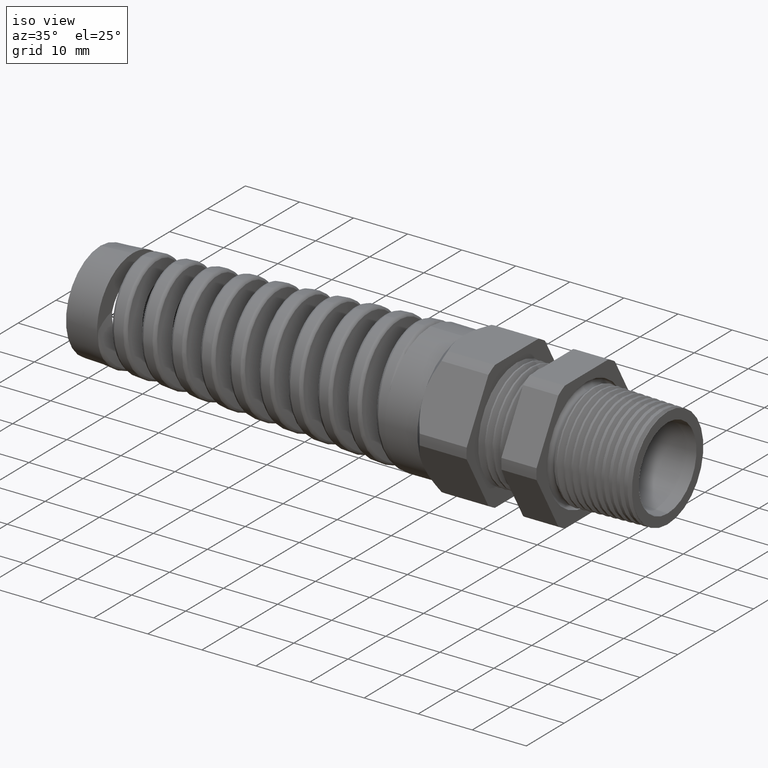
[diagram: clean part render]
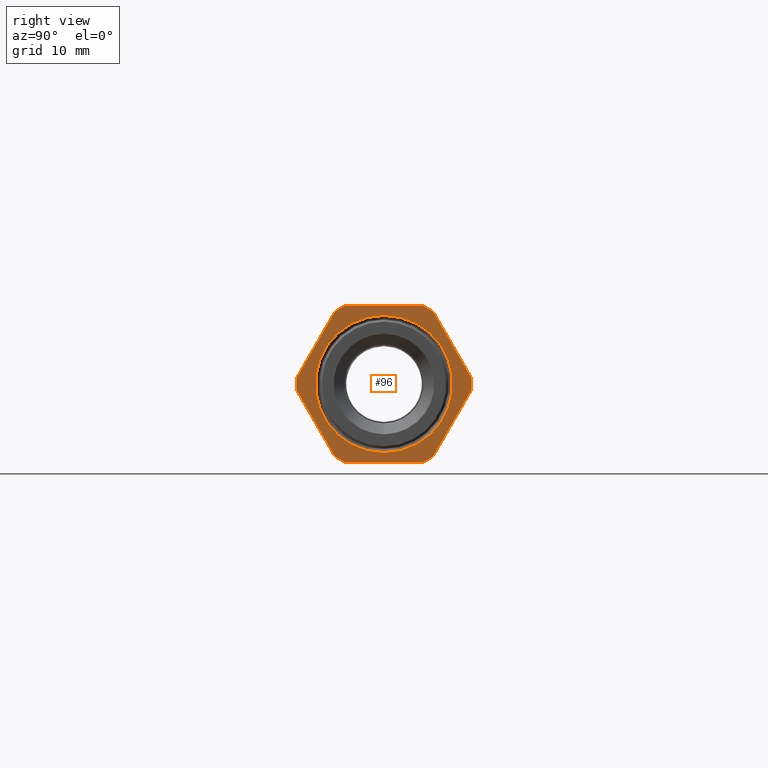
[diagram: tour spotlight — one face highlighted and labeled with its STEP entity id]
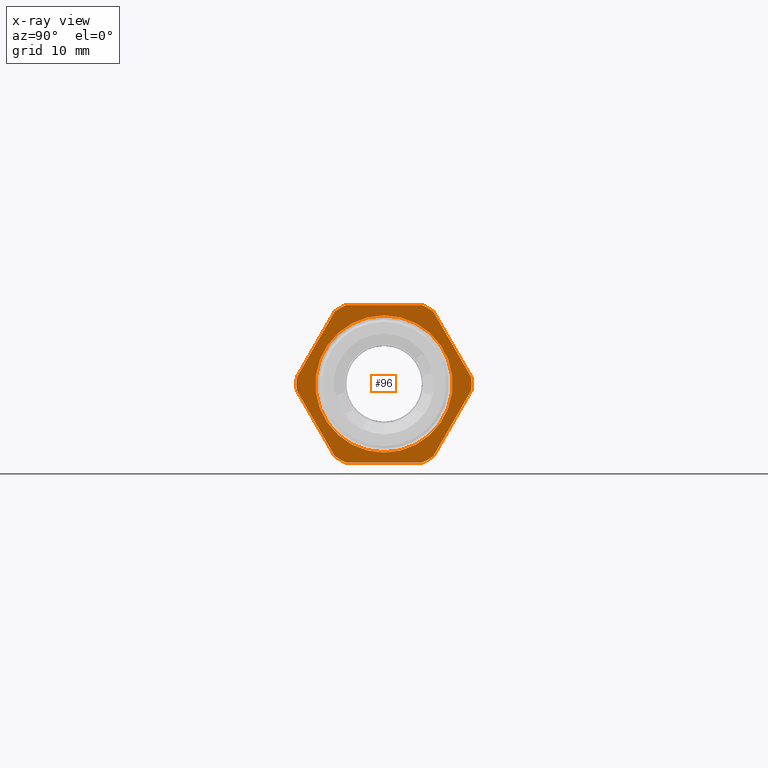
[diagram: x-ray of the same camera — body ghosted, this tour face saturated]
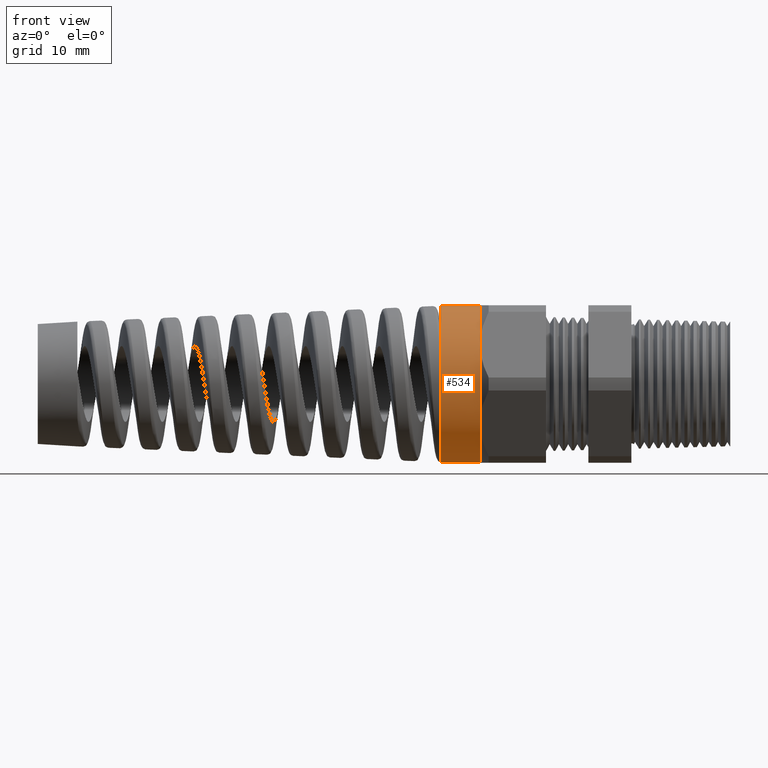
[diagram: tour spotlight — one face highlighted and labeled with its STEP entity id]
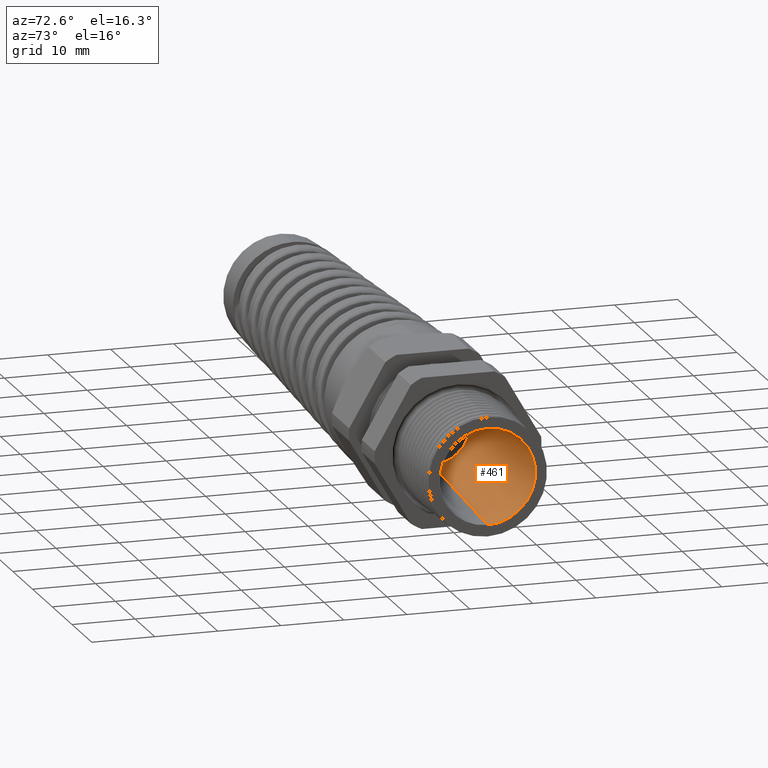
[diagram: tour spotlight — one face highlighted and labeled with its STEP entity id]
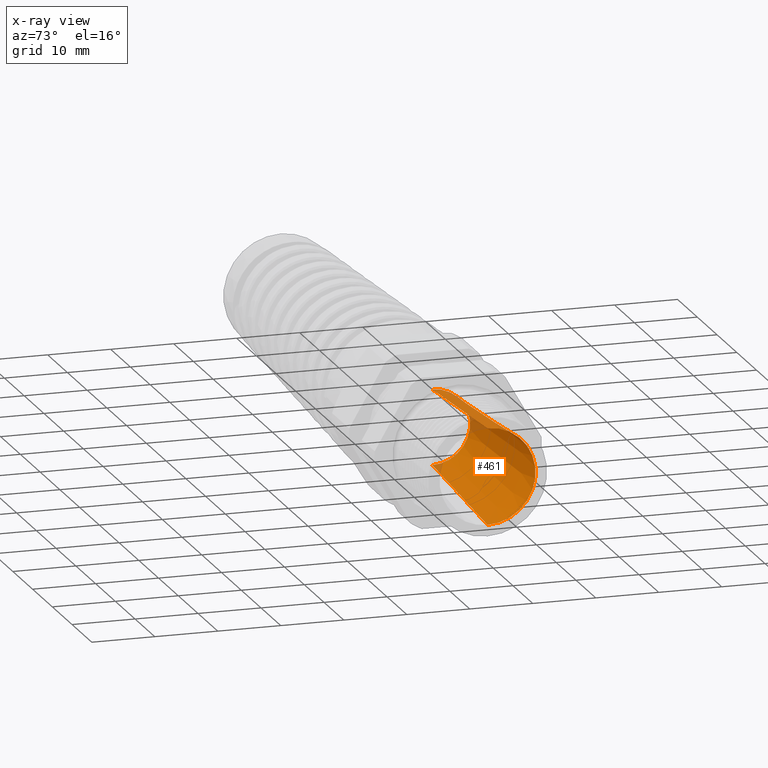
[diagram: x-ray of the same camera — body ghosted, this tour face saturated]
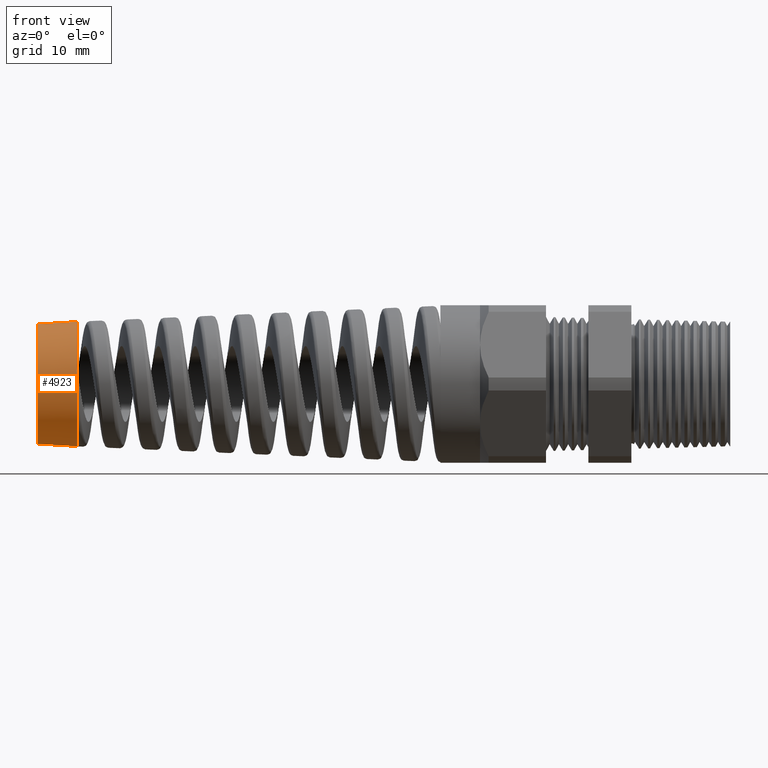
[diagram: tour spotlight — one face highlighted and labeled with its STEP entity id]
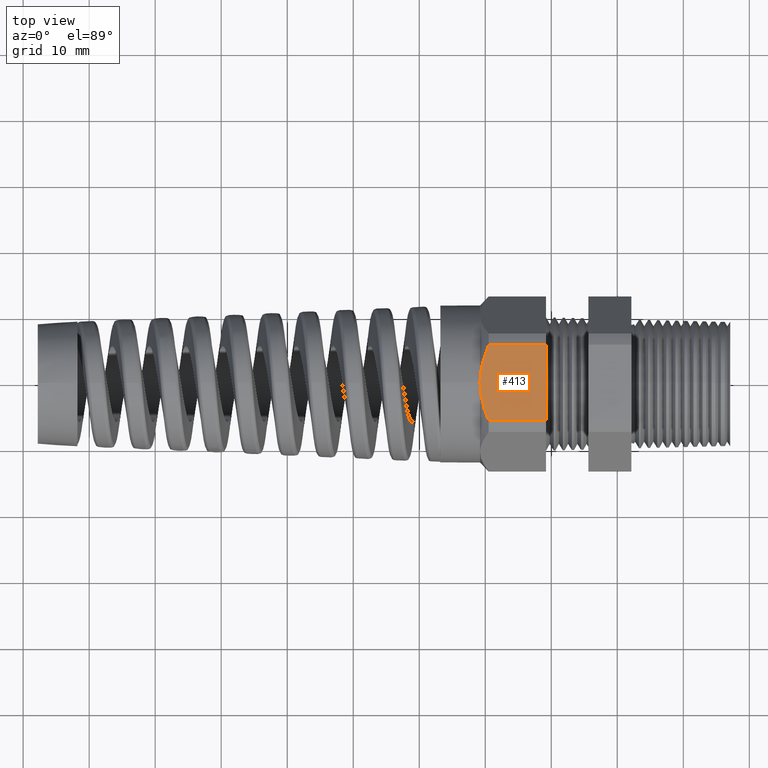
[diagram: tour spotlight — one face highlighted and labeled with its STEP entity id]
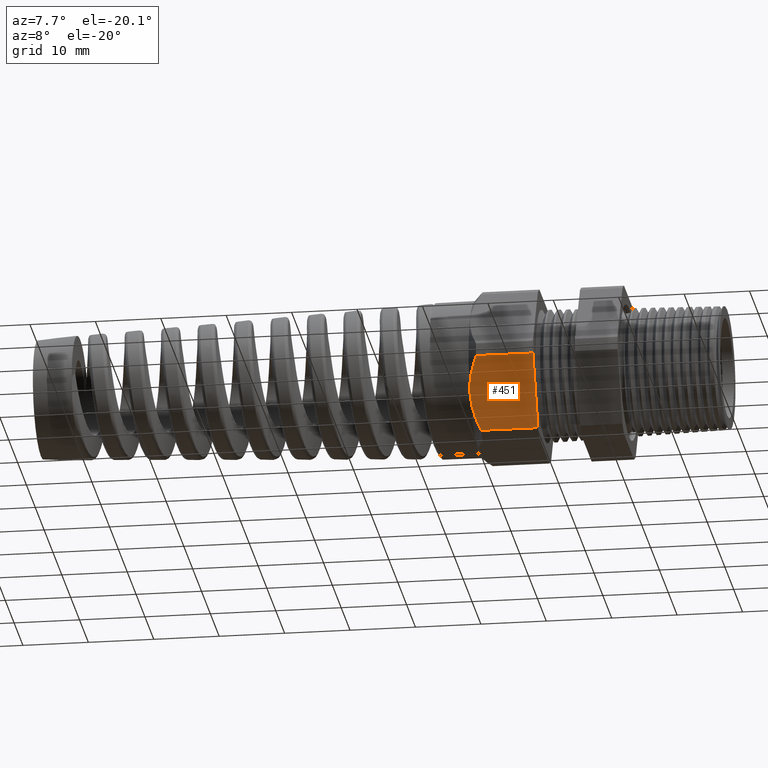
[diagram: tour spotlight — one face highlighted and labeled with its STEP entity id]
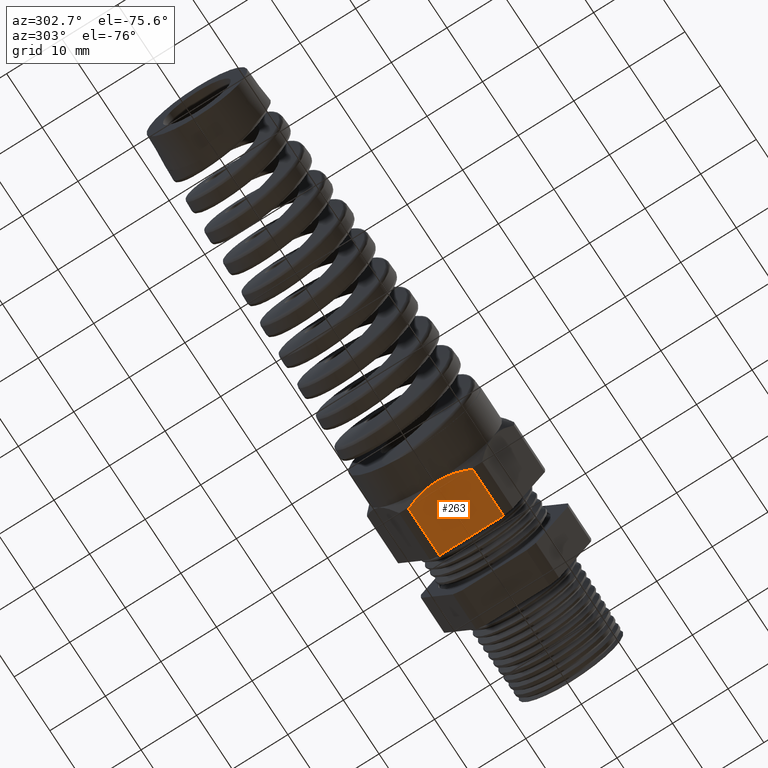
[diagram: tour spotlight — one face highlighted and labeled with its STEP entity id]
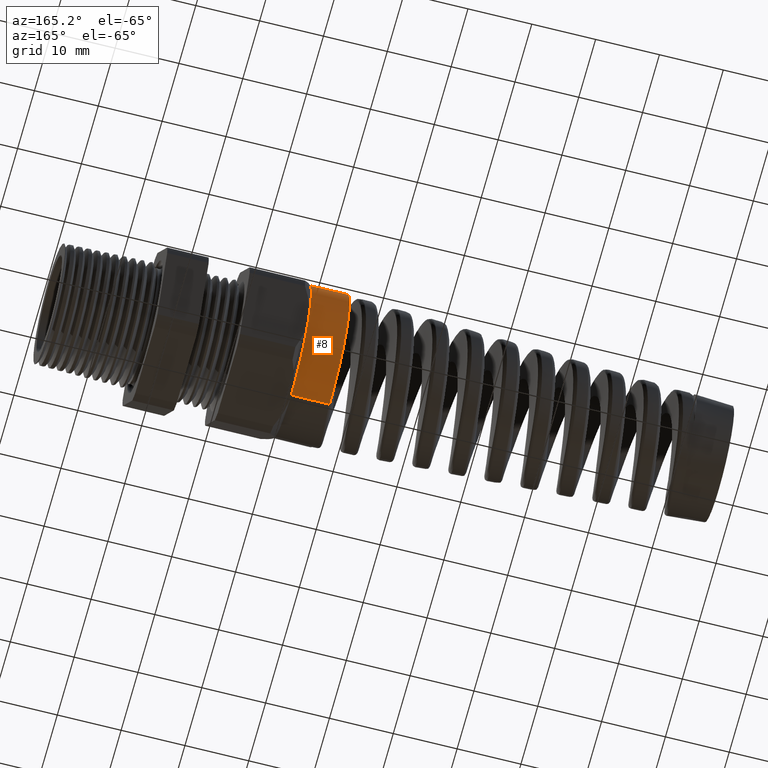
[diagram: tour spotlight — one face highlighted and labeled with its STEP entity id]
A machine part: a face-by-face anatomy tour. The part has 209 B-rep faces; the first image is the clean iso view, then the 8 largest visible faces are spotlighted one at a time (largest first), each with its STEP entity span.

Face 1 — right view, entity #96. An x-ray twin of the same camera follows (body ghosted, this face saturated) — the face is partly hidden behind the body. In plain terms, the highlighted planar face has unit normal (1, 0, 0).
Definition (entity closure, byte-faithful):
#36 = VERTEX_POINT ( 'NONE', #1205 ) ;
#37 = ORIENTED_EDGE ( 'NONE', *, *, #38, .T. ) ;
#38 = EDGE_CURVE ( 'NONE', #36, #39, #1204, .T. ) ;
#39 = VERTEX_POINT ( 'NONE', #1200 ) ;
#40 = ORIENTED_EDGE ( 'NONE', *, *, #42, .T. ) ;
#41 = VERTEX_POINT ( 'NONE', #1199 ) ;
#42 = EDGE_CURVE ( 'NONE', #39, #41, #1198, .T. ) ;
#43 = ORIENTED_EDGE ( 'NONE', *, *, #44, .T. ) ;
#44 = EDGE_CURVE ( 'NONE', #41, #45, #1193, .T. ) ;
#45 = VERTEX_POINT ( 'NONE', #1189 ) ;
#46 = ORIENTED_EDGE ( 'NONE', *, *, #47, .T. ) ;
#47 = EDGE_CURVE ( 'NONE', #45, #100, #1269, .T. ) ;
#48 = EDGE_LOOP ( 'NONE', ( #49, #50 ) ) ;
#49 = ORIENTED_EDGE ( 'NONE', *, *, #4506, .T. ) ;
#50 = ORIENTED_EDGE ( 'NONE', *, *, #51, .T. ) ;
#51 = EDGE_CURVE ( 'NONE', #4542, #4549, #1265, .T. ) ;
#53 = ORIENTED_EDGE ( 'NONE', *, *, #54, .T. ) ;
#54 = EDGE_CURVE ( 'NONE', #101, #55, #1260, .T. ) ;
#55 = VERTEX_POINT ( 'NONE', #1353 ) ;
#76 = ORIENTED_EDGE ( 'NONE', *, *, #77, .T. ) ;
#77 = EDGE_CURVE ( 'NONE', #55, #78, #1321, .T. ) ;
#78 = VERTEX_POINT ( 'NONE', #1317 ) ;
#79 = ORIENTED_EDGE ( 'NONE', *, *, #80, .T. ) ;
#80 = EDGE_CURVE ( 'NONE', #78, #81, #1316, .T. ) ;
#81 = VERTEX_POINT ( 'NONE', #1311 ) ;
#82 = ORIENTED_EDGE ( 'NONE', *, *, #83, .T. ) ;
#83 = EDGE_CURVE ( 'NONE', #81, #84, #1310, .T. ) ;
#84 = VERTEX_POINT ( 'NONE', #1278 ) ;
#85 = ORIENTED_EDGE ( 'NONE', *, *, #86, .T. ) ;
#86 = EDGE_CURVE ( 'NONE', #84, #87, #1277, .T. ) ;
#87 = VERTEX_POINT ( 'NONE', #1272 ) ;
#88 = ORIENTED_EDGE ( 'NONE', *, *, #89, .T. ) ;
#89 = EDGE_CURVE ( 'NONE', #87, #90, #1271, .T. ) ;
#90 = VERTEX_POINT ( 'NONE', #1307 ) ;
#96 = ADVANCED_FACE ( 'NONE', ( #1296, #1295 ), #1294, .T. ) ;
#97 = EDGE_LOOP ( 'NONE', ( #98, #53, #76, #79, #82, #85, #88, #116, #37, #40, #43, #46 ) ) ;
#98 = ORIENTED_EDGE ( 'NONE', *, *, #99, .T. ) ;
#99 = EDGE_CURVE ( 'NONE', #100, #101, #1411, .T. ) ;
#100 = VERTEX_POINT ( 'NONE', #1407 ) ;
#101 = VERTEX_POINT ( 'NONE', #1406 ) ;
#116 = ORIENTED_EDGE ( 'NONE', *, *, #117, .T. ) ;
#117 = EDGE_CURVE ( 'NONE', #90, #36, #1363, .T. ) ;
#1188 = CARTESIAN_POINT ( 'NONE',  ( -0.3100000000000000000, 0.0000000000000000000, 0.0000000000000000000 ) ) ;
#1189 = CARTESIAN_POINT ( 'NONE',  ( -0.3100000000000000000, 0.2264307620443832800, -0.4699999999999999700 ) ) ;
#1190 = DIRECTION ( 'NONE',  ( 0.0000000000000000000, 1.000000000000000000, 0.0000000000000000000 ) ) ;
#1191 = VECTOR ( 'NONE', #1190, 39.37007874015748100 ) ;
#1192 = CARTESIAN_POINT ( 'NONE',  ( -0.3100000000000000000, 0.9399999999999999500, -0.4699999999999999700 ) ) ;
#1193 = LINE ( 'NONE', #1192, #1191 ) ;
#1194 = DIRECTION ( 'NONE',  ( 0.0000000000000000000, 0.0000000000000000000, -1.000000000000000000 ) ) ;
#1195 = DIRECTION ( 'NONE',  ( 1.000000000000000000, 0.0000000000000000000, 0.0000000000000000000 ) ) ;
#1196 = CARTESIAN_POINT ( 'NONE',  ( -0.3100000000000000000, 0.0000000000000000000, 0.0000000000000000000 ) ) ;
#1197 = AXIS2_PLACEMENT_3D ( 'NONE', #1196, #1195, #1194 ) ;
#1198 = CIRCLE ( 'NONE', #1197, 0.5217000000000000500 ) ;
#1199 = CARTESIAN_POINT ( 'NONE',  ( -0.3100000000000000000, -0.2264307620443832300, -0.4699999999999999700 ) ) ;
#1200 = CARTESIAN_POINT ( 'NONE',  ( -0.3100000000000000000, -0.2938165587564942600, -0.4310947921287053300 ) ) ;
#1201 = DIRECTION ( 'NONE',  ( 0.0000000000000000000, 0.5000000000000001100, -0.8660254037844386000 ) ) ;
#1202 = VECTOR ( 'NONE', #1201, 39.37007874015748100 ) ;
#1203 = CARTESIAN_POINT ( 'NONE',  ( -0.3100000000000000000, -0.1720319397786861700, -0.6420319397786863300 ) ) ;
#1204 = LINE ( 'NONE', #1203, #1202 ) ;
#1205 = CARTESIAN_POINT ( 'NONE',  ( -0.3100000000000000000, -0.5202473208008777700, -0.03890520787129494300 ) ) ;
#1257 = DIRECTION ( 'NONE',  ( 1.000000000000000000, 0.0000000000000000000, 0.0000000000000000000 ) ) ;
#1258 = CARTESIAN_POINT ( 'NONE',  ( -0.3100000000000000000, 0.0000000000000000000, 0.0000000000000000000 ) ) ;
#1259 = AXIS2_PLACEMENT_3D ( 'NONE', #1258, #1257, #1354 ) ;
#1260 = CIRCLE ( 'NONE', #1259, 0.5217000000000000500 ) ;
#1261 = DIRECTION ( 'NONE',  ( 0.0000000000000000000, 0.0000000000000000000, -1.000000000000000000 ) ) ;
#1262 = DIRECTION ( 'NONE',  ( -1.000000000000000000, 0.0000000000000000000, 0.0000000000000000000 ) ) ;
#1263 = CARTESIAN_POINT ( 'NONE',  ( -0.3100000000000000000, 0.0000000000000000000, 0.0000000000000000000 ) ) ;
#1264 = AXIS2_PLACEMENT_3D ( 'NONE', #1263, #1262, #1261 ) ;
#1265 = CIRCLE ( 'NONE', #1264, 0.4091579204208630700 ) ;
#1266 = DIRECTION ( 'NONE',  ( 0.0000000000000000000, 0.0000000000000000000, -1.000000000000000000 ) ) ;
#1267 = DIRECTION ( 'NONE',  ( 1.000000000000000000, 0.0000000000000000000, 0.0000000000000000000 ) ) ;
#1268 = AXIS2_PLACEMENT_3D ( 'NONE', #1188, #1267, #1266 ) ;
#1269 = CIRCLE ( 'NONE', #1268, 0.5217000000000000500 ) ;
#1270 = CARTESIAN_POINT ( 'NONE',  ( -0.3100000000000000000, -0.1720319397786868300, 0.6420319397786857800 ) ) ;
#1271 = LINE ( 'NONE', #1270, #1309 ) ;
#1272 = CARTESIAN_POINT ( 'NONE',  ( -0.3100000000000000000, -0.2938165587564948700, 0.4310947921287048800 ) ) ;
#1273 = DIRECTION ( 'NONE',  ( 0.0000000000000000000, 0.0000000000000000000, -1.000000000000000000 ) ) ;
#1274 = DIRECTION ( 'NONE',  ( 1.000000000000000000, 0.0000000000000000000, 0.0000000000000000000 ) ) ;
#1275 = CARTESIAN_POINT ( 'NONE',  ( -0.3100000000000000000, 0.0000000000000000000, 0.0000000000000000000 ) ) ;
#1276 = AXIS2_PLACEMENT_3D ( 'NONE', #1275, #1274, #1273 ) ;
#1277 = CIRCLE ( 'NONE', #1276, 0.5217000000000000500 ) ;
#1278 = CARTESIAN_POINT ( 'NONE',  ( -0.3100000000000000000, -0.2264307620443835600, 0.4699999999999997500 ) ) ;
#1279 = DIRECTION ( 'NONE',  ( 0.0000000000000000000, -1.000000000000000000, 0.0000000000000000000 ) ) ;
#1280 = VECTOR ( 'NONE', #1279, 39.37007874015748100 ) ;
#1281 = CARTESIAN_POINT ( 'NONE',  ( -0.3100000000000000000, 0.9399999999999999500, 0.4699999999999999200 ) ) ;
#1293 = CARTESIAN_POINT ( 'NONE',  ( -0.3100000000000000000, 0.9399999999999999500, 0.0000000000000000000 ) ) ;
#1294 = PLANE ( 'NONE',  #1414 ) ;
#1295 = FACE_BOUND ( 'NONE', #48, .T. ) ;
#1296 = FACE_OUTER_BOUND ( 'NONE', #97, .T. ) ;
#1307 = CARTESIAN_POINT ( 'NONE',  ( -0.3100000000000000000, -0.5202473208008777700, 0.03890520787129464500 ) ) ;
#1308 = DIRECTION ( 'NONE',  ( 0.0000000000000000000, -0.4999999999999995600, -0.8660254037844389300 ) ) ;
#1309 = VECTOR ( 'NONE', #1308, 39.37007874015748100 ) ;
#1310 = LINE ( 'NONE', #1281, #1280 ) ;
#1311 = CARTESIAN_POINT ( 'NONE',  ( -0.3100000000000000000, 0.2264307620443832800, 0.4699999999999999200 ) ) ;
#1312 = DIRECTION ( 'NONE',  ( 0.0000000000000000000, 0.0000000000000000000, -1.000000000000000000 ) ) ;
#1313 = DIRECTION ( 'NONE',  ( 1.000000000000000000, 0.0000000000000000000, 0.0000000000000000000 ) ) ;
#1314 = CARTESIAN_POINT ( 'NONE',  ( -0.3100000000000000000, 0.0000000000000000000, 0.0000000000000000000 ) ) ;
#1315 = AXIS2_PLACEMENT_3D ( 'NONE', #1314, #1313, #1312 ) ;
#1316 = CIRCLE ( 'NONE', #1315, 0.5217000000000000500 ) ;
#1317 = CARTESIAN_POINT ( 'NONE',  ( -0.3100000000000000000, 0.2938165587564949300, 0.4310947921287048300 ) ) ;
#1318 = DIRECTION ( 'NONE',  ( 0.0000000000000000000, -0.4999999999999998300, 0.8660254037844386000 ) ) ;
#1319 = VECTOR ( 'NONE', #1318, 39.37007874015748900 ) ;
#1320 = CARTESIAN_POINT ( 'NONE',  ( -0.3100000000000000000, 0.6420319397786862200, -0.1720319397786860800 ) ) ;
#1321 = LINE ( 'NONE', #1320, #1319 ) ;
#1353 = CARTESIAN_POINT ( 'NONE',  ( -0.3100000000000000000, 0.5202473208008776600, 0.03890520787129531800 ) ) ;
#1354 = DIRECTION ( 'NONE',  ( 0.0000000000000000000, 0.0000000000000000000, -1.000000000000000000 ) ) ;
#1359 = DIRECTION ( 'NONE',  ( 0.0000000000000000000, 0.0000000000000000000, -1.000000000000000000 ) ) ;
#1360 = DIRECTION ( 'NONE',  ( 1.000000000000000000, 0.0000000000000000000, 0.0000000000000000000 ) ) ;
#1361 = CARTESIAN_POINT ( 'NONE',  ( -0.3100000000000000000, 0.0000000000000000000, 0.0000000000000000000 ) ) ;
#1362 = AXIS2_PLACEMENT_3D ( 'NONE', #1361, #1360, #1359 ) ;
#1363 = CIRCLE ( 'NONE', #1362, 0.5217000000000000500 ) ;
#1406 = CARTESIAN_POINT ( 'NONE',  ( -0.3100000000000000000, 0.5202473208008777700, -0.03890520787129508200 ) ) ;
#1407 = CARTESIAN_POINT ( 'NONE',  ( -0.3100000000000000000, 0.2938165587564948700, -0.4310947921287048800 ) ) ;
#1408 = DIRECTION ( 'NONE',  ( 0.0000000000000000000, 0.4999999999999998300, 0.8660254037844386000 ) ) ;
#1409 = VECTOR ( 'NONE', #1408, 39.37007874015748900 ) ;
#1410 = CARTESIAN_POINT ( 'NONE',  ( -0.3100000000000000000, 0.6420319397786862200, 0.1720319397786860800 ) ) ;
#1411 = LINE ( 'NONE', #1410, #1409 ) ;
#1412 = DIRECTION ( 'NONE',  ( 0.0000000000000000000, 0.0000000000000000000, -1.000000000000000000 ) ) ;
#1413 = DIRECTION ( 'NONE',  ( 1.000000000000000000, 0.0000000000000000000, 0.0000000000000000000 ) ) ;
#1414 = AXIS2_PLACEMENT_3D ( 'NONE', #1293, #1413, #1412 ) ;
#4506 = EDGE_CURVE ( 'NONE', #4549, #4542, #12811, .T. ) ;
#4542 = VERTEX_POINT ( 'NONE', #13324 ) ;
#4549 = VERTEX_POINT ( 'NONE', #13449 ) ;
#12696 = CARTESIAN_POINT ( 'NONE',  ( -0.3100000000000000000, 0.0000000000000000000, 0.0000000000000000000 ) ) ;
#12808 = DIRECTION ( 'NONE',  ( 0.0000000000000000000, 0.0000000000000000000, -1.000000000000000000 ) ) ;
#12809 = DIRECTION ( 'NONE',  ( -1.000000000000000000, 0.0000000000000000000, 0.0000000000000000000 ) ) ;
#12810 = AXIS2_PLACEMENT_3D ( 'NONE', #12696, #12809, #12808 ) ;
#12811 = CIRCLE ( 'NONE', #12810, 0.4091579204208630700 ) ;
#13324 = CARTESIAN_POINT ( 'NONE',  ( -0.3100000000000000000, 5.010739375891974600E-017, 0.4091579204208630200 ) ) ;
#13449 = CARTESIAN_POINT ( 'NONE',  ( -0.3100000000000000000, 0.0000000000000000000, -0.4091579204208630200 ) ) ;

Face 2 — front view, entity #534. In plain terms, the highlighted cylindrical surface (partial cylindrical patch) has radius 11.938 mm, axis along (1, 0, 0).
Definition (entity closure, byte-faithful):
#21 = VERTEX_POINT ( 'NONE', #1327 ) ;
#22 = VERTEX_POINT ( 'NONE', #1292 ) ;
#24 = EDGE_CURVE ( 'NONE', #21, #25, #1291, .T. ) ;
#25 = VERTEX_POINT ( 'NONE', #1287 ) ;
#115 = EDGE_CURVE ( 'NONE', #22, #183, #1367, .T. ) ;
#183 = VERTEX_POINT ( 'NONE', #1460 ) ;
#249 = VERTEX_POINT ( 'NONE', #1628 ) ;
#381 = EDGE_CURVE ( 'NONE', #25, #249, #1938, .T. ) ;
#533 = VERTEX_POINT ( 'NONE', #2340 ) ;
#534 = ADVANCED_FACE ( 'NONE', ( #2342 ), #2324, .T. ) ;
#535 = EDGE_LOOP ( 'NONE', ( #536, #537, #539, #540, #542, #544 ) ) ;
#536 = ORIENTED_EDGE ( 'NONE', *, *, #24, .F. ) ;
#537 = ORIENTED_EDGE ( 'NONE', *, *, #538, .F. ) ;
#538 = EDGE_CURVE ( 'NONE', #22, #21, #2316, .T. ) ;
#539 = ORIENTED_EDGE ( 'NONE', *, *, #115, .T. ) ;
#540 = ORIENTED_EDGE ( 'NONE', *, *, #541, .F. ) ;
#541 = EDGE_CURVE ( 'NONE', #533, #183, #2312, .T. ) ;
#542 = ORIENTED_EDGE ( 'NONE', *, *, #543, .F. ) ;
#543 = EDGE_CURVE ( 'NONE', #249, #533, #2307, .T. ) ;
#544 = ORIENTED_EDGE ( 'NONE', *, *, #381, .F. ) ;
#1287 = CARTESIAN_POINT ( 'NONE',  ( -1.212519685039370000, 0.0000000000000000000, 0.4699999999999999200 ) ) ;
#1288 = DIRECTION ( 'NONE',  ( 1.000000000000000000, 0.0000000000000000000, 0.0000000000000000000 ) ) ;
#1289 = VECTOR ( 'NONE', #1288, 39.37007874015748100 ) ;
#1290 = CARTESIAN_POINT ( 'NONE',  ( 0.0000000000000000000, 5.755839955992559700E-017, 0.4699999999999999700 ) ) ;
#1291 = LINE ( 'NONE', #1290, #1289 ) ;
#1292 = CARTESIAN_POINT ( 'NONE',  ( -1.448820353894546600, 0.0000000000000000000, -0.4699999999999997500 ) ) ;
#1327 = CARTESIAN_POINT ( 'NONE',  ( -1.448820353894546600, 5.755839955992558400E-017, 0.4699999999999997500 ) ) ;
#1364 = DIRECTION ( 'NONE',  ( 1.000000000000000000, 0.0000000000000000000, 0.0000000000000000000 ) ) ;
#1365 = VECTOR ( 'NONE', #1364, 39.37007874015748100 ) ;
#1366 = CARTESIAN_POINT ( 'NONE',  ( 0.0000000000000000000, 0.0000000000000000000, -0.4699999999999999700 ) ) ;
#1367 = LINE ( 'NONE', #1366, #1365 ) ;
#1460 = CARTESIAN_POINT ( 'NONE',  ( -1.212519685039370000, 0.0000000000000000000, -0.4699999999999999700 ) ) ;
#1628 = CARTESIAN_POINT ( 'NONE',  ( -1.212519685039370000, -0.4070319397786862400, 0.2349999999999997900 ) ) ;
#1935 = DIRECTION ( 'NONE',  ( 0.0000000000000000000, 0.0000000000000000000, -1.000000000000000000 ) ) ;
#1936 = DIRECTION ( 'NONE',  ( 1.000000000000000000, 0.0000000000000000000, 0.0000000000000000000 ) ) ;
#1937 = AXIS2_PLACEMENT_3D ( 'NONE', #2056, #1936, #1935 ) ;
#1938 = CIRCLE ( 'NONE', #1937, 0.4699999999999999700 ) ;
#2056 = CARTESIAN_POINT ( 'NONE',  ( -1.212519685039370000, 0.0000000000000000000, 0.0000000000000000000 ) ) ;
#2303 = DIRECTION ( 'NONE',  ( 0.0000000000000000000, 0.0000000000000000000, -1.000000000000000000 ) ) ;
#2304 = DIRECTION ( 'NONE',  ( 1.000000000000000000, 0.0000000000000000000, 0.0000000000000000000 ) ) ;
#2305 = CARTESIAN_POINT ( 'NONE',  ( -1.212519685039370000, 0.0000000000000000000, 0.0000000000000000000 ) ) ;
#2306 = AXIS2_PLACEMENT_3D ( 'NONE', #2305, #2304, #2303 ) ;
#2307 = CIRCLE ( 'NONE', #2306, 0.4699999999999999700 ) ;
#2308 = DIRECTION ( 'NONE',  ( 0.0000000000000000000, 0.0000000000000000000, -1.000000000000000000 ) ) ;
#2309 = DIRECTION ( 'NONE',  ( 1.000000000000000000, 0.0000000000000000000, 0.0000000000000000000 ) ) ;
#2310 = CARTESIAN_POINT ( 'NONE',  ( -1.212519685039370000, 0.0000000000000000000, 0.0000000000000000000 ) ) ;
#2311 = AXIS2_PLACEMENT_3D ( 'NONE', #2310, #2309, #2308 ) ;
#2312 = CIRCLE ( 'NONE', #2311, 0.4699999999999999700 ) ;
#2313 = DIRECTION ( 'NONE',  ( 0.0000000000000000000, 0.0000000000000000000, 1.000000000000000000 ) ) ;
#2314 = DIRECTION ( 'NONE',  ( -1.000000000000000000, 0.0000000000000000000, 0.0000000000000000000 ) ) ;
#2315 = AXIS2_PLACEMENT_3D ( 'NONE', #2339, #2314, #2313 ) ;
#2316 = CIRCLE ( 'NONE', #2315, 0.4699999999999997500 ) ;
#2324 = CYLINDRICAL_SURFACE ( 'NONE', #2338, 0.4699999999999999700 ) ;
#2335 = DIRECTION ( 'NONE',  ( 0.0000000000000000000, 0.0000000000000000000, -1.000000000000000000 ) ) ;
#2336 = DIRECTION ( 'NONE',  ( 1.000000000000000000, 0.0000000000000000000, 0.0000000000000000000 ) ) ;
#2337 = CARTESIAN_POINT ( 'NONE',  ( 0.0000000000000000000, 0.0000000000000000000, 0.0000000000000000000 ) ) ;
#2338 = AXIS2_PLACEMENT_3D ( 'NONE', #2337, #2336, #2335 ) ;
#2339 = CARTESIAN_POINT ( 'NONE',  ( -1.448820353894546600, 0.0000000000000000000, 0.0000000000000000000 ) ) ;
#2340 = CARTESIAN_POINT ( 'NONE',  ( -1.212519685039370000, -0.4070319397786861200, -0.2350000000000000400 ) ) ;
#2342 = FACE_OUTER_BOUND ( 'NONE', #535, .T. ) ;

Face 3 — auxiliary view, entity #461. An x-ray twin of the same camera follows (body ghosted, this face saturated) — the face is partly hidden behind the body. In plain terms, the highlighted conical surface has half-angle 3.385 deg.
Definition (entity closure, byte-faithful):
#152 = VERTEX_POINT ( 'NONE', #1573 ) ;
#153 = VERTEX_POINT ( 'NONE', #1572 ) ;
#155 = EDGE_CURVE ( 'NONE', #152, #156, #1571, .T. ) ;
#156 = VERTEX_POINT ( 'NONE', #1605 ) ;
#198 = VERTEX_POINT ( 'NONE', #1552 ) ;
#233 = EDGE_CURVE ( 'NONE', #153, #198, #1415, .T. ) ;
#428 = ORIENTED_EDGE ( 'NONE', *, *, #233, .T. ) ;
#429 = ORIENTED_EDGE ( 'NONE', *, *, #430, .T. ) ;
#430 = EDGE_CURVE ( 'NONE', #198, #156, #1900, .T. ) ;
#460 = EDGE_CURVE ( 'NONE', #153, #152, #2049, .T. ) ;
#461 = ADVANCED_FACE ( 'NONE', ( #2045 ), #2044, .F. ) ;
#462 = EDGE_LOOP ( 'NONE', ( #463, #464, #428, #429 ) ) ;
#463 = ORIENTED_EDGE ( 'NONE', *, *, #155, .F. ) ;
#464 = ORIENTED_EDGE ( 'NONE', *, *, #460, .F. ) ;
#1415 = LINE ( 'NONE', #1421, #1546 ) ;
#1421 = CARTESIAN_POINT ( 'NONE',  ( -0.8188188976377951400, 0.0000000000000000000, -0.2350000000000000100 ) ) ;
#1545 = DIRECTION ( 'NONE',  ( 0.9982549554271934500, 0.0000000000000000000, -0.05905119782910416000 ) ) ;
#1546 = VECTOR ( 'NONE', #1545, 39.37007874015748900 ) ;
#1552 = CARTESIAN_POINT ( 'NONE',  ( 0.2800000000000000300, 0.0000000000000000000, -0.3000000000000000400 ) ) ;
#1568 = DIRECTION ( 'NONE',  ( 0.9982549554271934500, 7.231686040722954100E-018, 0.05905119782910416000 ) ) ;
#1569 = VECTOR ( 'NONE', #1568, 39.37007874015748900 ) ;
#1570 = CARTESIAN_POINT ( 'NONE',  ( -0.8188188976377951400, 2.877919977996280400E-017, 0.2350000000000000100 ) ) ;
#1571 = LINE ( 'NONE', #1570, #1569 ) ;
#1572 = CARTESIAN_POINT ( 'NONE',  ( -0.8188188976377951400, 0.0000000000000000000, -0.2350000000000000100 ) ) ;
#1573 = CARTESIAN_POINT ( 'NONE',  ( -0.8188188976377951400, 2.877919977996280400E-017, 0.2350000000000000100 ) ) ;
#1605 = CARTESIAN_POINT ( 'NONE',  ( 0.2800000000000000300, 3.673940397442060700E-017, 0.3000000000000000400 ) ) ;
#1896 = DIRECTION ( 'NONE',  ( 0.0000000000000000000, 0.0000000000000000000, -1.000000000000000000 ) ) ;
#1897 = DIRECTION ( 'NONE',  ( 1.000000000000000000, 0.0000000000000000000, 0.0000000000000000000 ) ) ;
#1898 = CARTESIAN_POINT ( 'NONE',  ( 0.2800000000000000300, 0.0000000000000000000, 0.0000000000000000000 ) ) ;
#1899 = AXIS2_PLACEMENT_3D ( 'NONE', #1898, #1897, #1896 ) ;
#1900 = CIRCLE ( 'NONE', #1899, 0.3000000000000000400 ) ;
#2040 = DIRECTION ( 'NONE',  ( 0.0000000000000000000, 0.0000000000000000000, -1.000000000000000000 ) ) ;
#2041 = DIRECTION ( 'NONE',  ( 1.000000000000000000, 0.0000000000000000000, 0.0000000000000000000 ) ) ;
#2042 = CARTESIAN_POINT ( 'NONE',  ( -0.8188188976377951400, 0.0000000000000000000, 0.0000000000000000000 ) ) ;
#2043 = AXIS2_PLACEMENT_3D ( 'NONE', #2042, #2041, #2040 ) ;
#2044 = CONICAL_SURFACE ( 'NONE', #2043, 0.2350000000000000100, 0.05908557081402041700 ) ;
#2045 = FACE_OUTER_BOUND ( 'NONE', #462, .T. ) ;
#2046 = DIRECTION ( 'NONE',  ( 0.0000000000000000000, 0.0000000000000000000, -1.000000000000000000 ) ) ;
#2047 = DIRECTION ( 'NONE',  ( 1.000000000000000000, 0.0000000000000000000, 0.0000000000000000000 ) ) ;
#2048 = AXIS2_PLACEMENT_3D ( 'NONE', #2055, #2047, #2046 ) ;
#2049 = CIRCLE ( 'NONE', #2048, 0.2350000000000000100 ) ;
#2055 = CARTESIAN_POINT ( 'NONE',  ( -0.8188188976377951400, 0.0000000000000000000, 0.0000000000000000000 ) ) ;

Face 4 — front view, entity #4923. In plain terms, the highlighted conical surface has half-angle 3.5 deg.
Definition (entity closure, byte-faithful):
#4525 = VERTEX_POINT ( 'NONE', #13123 ) ;
#4718 = EDGE_CURVE ( 'NONE', #4719, #4525, #14250, .T. ) ;
#4719 = VERTEX_POINT ( 'NONE', #14241 ) ;
#4923 = ADVANCED_FACE ( 'NONE', ( #15859 ), #15858, .T. ) ;
#4924 = EDGE_LOOP ( 'NONE', ( #4970, #4966, #4968, #5089, #5091 ) ) ;
#4964 = VERTEX_POINT ( 'NONE', #15963 ) ;
#4965 = EDGE_CURVE ( 'NONE', #4986, #4964, #15927, .T. ) ;
#4966 = ORIENTED_EDGE ( 'NONE', *, *, #4967, .T. ) ;
#4967 = EDGE_CURVE ( 'NONE', #4986, #4525, #15928, .T. ) ;
#4968 = ORIENTED_EDGE ( 'NONE', *, *, #4718, .F. ) ;
#4969 = VERTEX_POINT ( 'NONE', #15919 ) ;
#4970 = ORIENTED_EDGE ( 'NONE', *, *, #4965, .F. ) ;
#4986 = VERTEX_POINT ( 'NONE', #15978 ) ;
#5089 = ORIENTED_EDGE ( 'NONE', *, *, #5090, .T. ) ;
#5090 = EDGE_CURVE ( 'NONE', #4719, #4969, #16302, .T. ) ;
#5091 = ORIENTED_EDGE ( 'NONE', *, *, #5092, .F. ) ;
#5092 = EDGE_CURVE ( 'NONE', #4964, #4969, #16297, .T. ) ;
#13123 = CARTESIAN_POINT ( 'NONE',  ( -3.613780000000000200, -4.556107977781273200E-017, -0.3720344495207444900 ) ) ;
#14241 = CARTESIAN_POINT ( 'NONE',  ( -3.613780000000000200, -0.3097289570580168400, -0.2061009577608908200 ) ) ;
#14242 = DIRECTION ( 'NONE',  ( 0.0000000000000000000, 0.0000000000000000000, -1.000000000000000000 ) ) ;
#14243 = DIRECTION ( 'NONE',  ( 1.000000000000000000, 0.0000000000000000000, 0.0000000000000000000 ) ) ;
#14244 = CARTESIAN_POINT ( 'NONE',  ( -3.613780000000000200, 0.0000000000000000000, 0.0000000000000000000 ) ) ;
#14245 = AXIS2_PLACEMENT_3D ( 'NONE', #14244, #14243, #14242 ) ;
#14250 = CIRCLE ( 'NONE', #14245, 0.3720344495207380500 ) ;
#15854 = DIRECTION ( 'NONE',  ( 0.0000000000000000000, 0.0000000000000000000, 1.000000000000000000 ) ) ;
#15855 = DIRECTION ( 'NONE',  ( 1.000000000000000000, 0.0000000000000000000, 0.0000000000000000000 ) ) ;
#15856 = CARTESIAN_POINT ( 'NONE',  ( -3.613780000000000200, 0.0000000000000000000, 0.0000000000000000000 ) ) ;
#15857 = AXIS2_PLACEMENT_3D ( 'NONE', #15856, #15855, #15854 ) ;
#15858 = CONICAL_SURFACE ( 'NONE', #15857, 0.3720344495207444900, 0.06108652381980166800 ) ;
#15859 = FACE_OUTER_BOUND ( 'NONE', #4924, .T. ) ;
#15919 = CARTESIAN_POINT ( 'NONE',  ( -3.613780000000000200, 0.0000000000000000000, 0.3720344495207444900 ) ) ;
#15920 = DIRECTION ( 'NONE',  ( 0.9981347984218669200, -7.476289853398327700E-018, -0.06104853953485701200 ) ) ;
#15921 = VECTOR ( 'NONE', #15920, 39.37007874015748900 ) ;
#15922 = CARTESIAN_POINT ( 'NONE',  ( -3.613780000000000200, -4.556107977781273200E-017, -0.3720344495207444900 ) ) ;
#15923 = DIRECTION ( 'NONE',  ( 0.0000000000000000000, 0.0000000000000000000, 1.000000000000000000 ) ) ;
#15924 = DIRECTION ( 'NONE',  ( -1.000000000000000000, 0.0000000000000000000, 0.0000000000000000000 ) ) ;
#15925 = CARTESIAN_POINT ( 'NONE',  ( -3.850000472440945600, 0.0000000000000000000, 0.0000000000000000000 ) ) ;
#15926 = AXIS2_PLACEMENT_3D ( 'NONE', #15925, #15924, #15923 ) ;
#15927 = CIRCLE ( 'NONE', #15926, 0.3575865864930709600 ) ;
#15928 = LINE ( 'NONE', #15922, #15921 ) ;
#15963 = CARTESIAN_POINT ( 'NONE',  ( -3.850000472440945600, 0.0000000000000000000, 0.3575865864930709600 ) ) ;
#15978 = CARTESIAN_POINT ( 'NONE',  ( -3.850000472440945600, -4.467640331724473700E-017, -0.3575865864930709600 ) ) ;
#16294 = DIRECTION ( 'NONE',  ( 0.9981347984218669200, 0.0000000000000000000, 0.06104853953485701200 ) ) ;
#16295 = VECTOR ( 'NONE', #16294, 39.37007874015748900 ) ;
#16296 = CARTESIAN_POINT ( 'NONE',  ( -3.613780000000000200, 0.0000000000000000000, 0.3720344495207444900 ) ) ;
#16297 = LINE ( 'NONE', #16296, #16295 ) ;
#16298 = DIRECTION ( 'NONE',  ( 0.0000000000000000000, 0.0000000000000000000, 1.000000000000000000 ) ) ;
#16299 = DIRECTION ( 'NONE',  ( -1.000000000000000000, 0.0000000000000000000, 0.0000000000000000000 ) ) ;
#16300 = CARTESIAN_POINT ( 'NONE',  ( -3.613780000000000200, 0.0000000000000000000, 0.0000000000000000000 ) ) ;
#16301 = AXIS2_PLACEMENT_3D ( 'NONE', #16300, #16299, #16298 ) ;
#16302 = CIRCLE ( 'NONE', #16301, 0.3720344495207444900 ) ;

Face 5 — top view, entity #413. In plain terms, the highlighted planar face has unit normal (0, 0, 1).
Definition (entity closure, byte-faithful):
#25 = VERTEX_POINT ( 'NONE', #1287 ) ;
#173 = EDGE_CURVE ( 'NONE', #174, #175, #1586, .T. ) ;
#174 = VERTEX_POINT ( 'NONE', #1577 ) ;
#175 = VERTEX_POINT ( 'NONE', #1576 ) ;
#261 = EDGE_LOOP ( 'NONE', ( #414, #418, #272, #274, #275 ) ) ;
#272 = ORIENTED_EDGE ( 'NONE', *, *, #273, .T. ) ;
#273 = EDGE_CURVE ( 'NONE', #25, #175, #1719, .T. ) ;
#274 = ORIENTED_EDGE ( 'NONE', *, *, #173, .F. ) ;
#275 = ORIENTED_EDGE ( 'NONE', *, *, #276, .F. ) ;
#276 = EDGE_CURVE ( 'NONE', #416, #174, #1730, .T. ) ;
#413 = ADVANCED_FACE ( 'NONE', ( #2067 ), #2066, .T. ) ;
#414 = ORIENTED_EDGE ( 'NONE', *, *, #415, .T. ) ;
#415 = EDGE_CURVE ( 'NONE', #416, #417, #2026, .T. ) ;
#416 = VERTEX_POINT ( 'NONE', #2022 ) ;
#417 = VERTEX_POINT ( 'NONE', #2021 ) ;
#418 = ORIENTED_EDGE ( 'NONE', *, *, #419, .T. ) ;
#419 = EDGE_CURVE ( 'NONE', #417, #25, #2020, .T. ) ;
#1287 = CARTESIAN_POINT ( 'NONE',  ( -1.212519685039370000, 0.0000000000000000000, 0.4699999999999999200 ) ) ;
#1576 = CARTESIAN_POINT ( 'NONE',  ( -1.160819685039369700, -0.2264307620443835000, 0.4699999999999999200 ) ) ;
#1577 = CARTESIAN_POINT ( 'NONE',  ( -0.8188188976377951400, -0.2264307620443835600, 0.4699999999999997500 ) ) ;
#1578 = DIRECTION ( 'NONE',  ( -1.000000000000000000, 0.0000000000000000000, 0.0000000000000000000 ) ) ;
#1579 = VECTOR ( 'NONE', #1578, 39.37007874015748100 ) ;
#1580 = CARTESIAN_POINT ( 'NONE',  ( 0.2800000000000001400, -0.2264307620443835600, 0.4699999999999997500 ) ) ;
#1586 = LINE ( 'NONE', #1580, #1579 ) ;
#1708 = VECTOR ( 'NONE', #1717, 39.37007874015748100 ) ;
#1709 = CARTESIAN_POINT ( 'NONE',  ( -1.160819685039369700, -0.2264307620443835000, 0.4699999999999999200 ) ) ;
#1710 = CARTESIAN_POINT ( 'NONE',  ( -1.168556565238666200, -0.2086048696456210300, 0.4699999999999999700 ) ) ;
#1711 = CARTESIAN_POINT ( 'NONE',  ( -1.175705272508839300, -0.1904348960138966800, 0.4700000000000000300 ) ) ;
#1712 = CARTESIAN_POINT ( 'NONE',  ( -1.188468258097386900, -0.1532690879941743800, 0.4699999999999999200 ) ) ;
#1713 = CARTESIAN_POINT ( 'NONE',  ( -1.193987294149184000, -0.1345390626635396500, 0.4699999999999998600 ) ) ;
#1714 = CARTESIAN_POINT ( 'NONE',  ( -1.207534503684483600, -0.07783554612607099200, 0.4699999999999998600 ) ) ;
#1715 = CARTESIAN_POINT ( 'NONE',  ( -1.212519685039370000, -0.03934296915062190200, 0.4699999999999999700 ) ) ;
#1716 = CARTESIAN_POINT ( 'NONE',  ( -1.212519685039370000, 0.0000000000000000000, 0.4699999999999999200 ) ) ;
#1717 = DIRECTION ( 'NONE',  ( 0.0000000000000000000, -1.000000000000000000, 0.0000000000000000000 ) ) ;
#1718 = CARTESIAN_POINT ( 'NONE',  ( -0.8188188976377951400, 0.4000000000000000200, 0.4699999999999999200 ) ) ;
#1719 = B_SPLINE_CURVE_WITH_KNOTS ( 'NONE', 3,
 ( #1716, #1715, #1714, #1713, #1712, #1711, #1710, #1709 ),
 .UNSPECIFIED., .F., .F.,
 ( 4, 2, 2, 4 ),
 ( 0.01501897965151429700, 0.01796263803772296000, 0.01943446723082728800, 0.02090629642393161700 ),
 .UNSPECIFIED. ) ;
#1730 = LINE ( 'NONE', #1718, #1708 ) ;
#2006 = CARTESIAN_POINT ( 'NONE',  ( -1.212519685039370000, 0.0000000000000000000, 0.4699999999999999200 ) ) ;
#2007 = CARTESIAN_POINT ( 'NONE',  ( -1.212519685039370000, 0.01964242875915809400, 0.4699999999999999200 ) ) ;
#2008 = CARTESIAN_POINT ( 'NONE',  ( -1.211272925247352000, 0.03924163778662351200, 0.4699999999999999700 ) ) ;
#2009 = CARTESIAN_POINT ( 'NONE',  ( -1.206505384426679500, 0.07782038235249978700, 0.4699999999999999200 ) ) ;
#2010 = CARTESIAN_POINT ( 'NONE',  ( -1.202986906930677600, 0.09688970369981489400, 0.4699999999999999700 ) ) ;
#2011 = CARTESIAN_POINT ( 'NONE',  ( -1.193957968232915600, 0.1346420459264780200, 0.4699999999999999200 ) ) ;
#2012 = CARTESIAN_POINT ( 'NONE',  ( -1.188448686756323300, 0.1533252955870070000, 0.4699999999999999200 ) ) ;
#2013 = CARTESIAN_POINT ( 'NONE',  ( -1.175730508465536700, 0.1903621927138393300, 0.4699999999999999700 ) ) ;
#2014 = CARTESIAN_POINT ( 'NONE',  ( -1.168556414821143400, 0.2086052162099338300, 0.4699999999999997500 ) ) ;
#2015 = CARTESIAN_POINT ( 'NONE',  ( -1.160819685039369700, 0.2264307620443833400, 0.4700000000000000300 ) ) ;
#2020 = B_SPLINE_CURVE_WITH_KNOTS ( 'NONE', 3,
 ( #2015, #2014, #2013, #2012, #2011, #2010, #2009, #2008, #2007, #2006 ),
 .UNSPECIFIED., .F., .F.,
 ( 4, 2, 2, 2, 4 ),
 ( 0.009140358755258088200, 0.01061001397932214000, 0.01207966920338619300, 0.01354932442745024500, 0.01501897965151429700 ),
 .UNSPECIFIED. ) ;
#2021 = CARTESIAN_POINT ( 'NONE',  ( -1.160819685039369700, 0.2264307620443833400, 0.4700000000000000300 ) ) ;
#2022 = CARTESIAN_POINT ( 'NONE',  ( -0.8188188976377951400, 0.2264307620443832800, 0.4699999999999999200 ) ) ;
#2023 = DIRECTION ( 'NONE',  ( -1.000000000000000000, 0.0000000000000000000, 0.0000000000000000000 ) ) ;
#2024 = VECTOR ( 'NONE', #2023, 39.37007874015748100 ) ;
#2025 = CARTESIAN_POINT ( 'NONE',  ( 0.2800000000000001400, 0.2264307620443832800, 0.4699999999999999200 ) ) ;
#2026 = LINE ( 'NONE', #2025, #2024 ) ;
#2027 = DIRECTION ( 'NONE',  ( 1.000000000000000000, 0.0000000000000000000, 0.0000000000000000000 ) ) ;
#2028 = DIRECTION ( 'NONE',  ( 0.0000000000000000000, 0.0000000000000000000, 1.000000000000000000 ) ) ;
#2029 = CARTESIAN_POINT ( 'NONE',  ( 0.2800000000000001400, -0.2264307620443832800, 0.4699999999999999200 ) ) ;
#2030 = AXIS2_PLACEMENT_3D ( 'NONE', #2029, #2028, #2027 ) ;
#2066 = PLANE ( 'NONE',  #2030 ) ;
#2067 = FACE_OUTER_BOUND ( 'NONE', #261, .T. ) ;

Face 6 — auxiliary view, entity #451. In plain terms, the highlighted planar face has unit normal (0, -0.866, -0.5).
Definition (entity closure, byte-faithful):
#254 = EDGE_LOOP ( 'NONE', ( #452, #531, #487, #489, #490 ) ) ;
#408 = EDGE_CURVE ( 'NONE', #409, #410, #2083, .T. ) ;
#409 = VERTEX_POINT ( 'NONE', #2074 ) ;
#410 = VERTEX_POINT ( 'NONE', #2073 ) ;
#451 = ADVANCED_FACE ( 'NONE', ( #2098 ), #2097, .T. ) ;
#452 = ORIENTED_EDGE ( 'NONE', *, *, #453, .T. ) ;
#453 = EDGE_CURVE ( 'NONE', #529, #530, #2092, .T. ) ;
#487 = ORIENTED_EDGE ( 'NONE', *, *, #488, .T. ) ;
#488 = EDGE_CURVE ( 'NONE', #533, #410, #2168, .T. ) ;
#489 = ORIENTED_EDGE ( 'NONE', *, *, #408, .F. ) ;
#490 = ORIENTED_EDGE ( 'NONE', *, *, #491, .F. ) ;
#491 = EDGE_CURVE ( 'NONE', #529, #409, #2323, .T. ) ;
#529 = VERTEX_POINT ( 'NONE', #2117 ) ;
#530 = VERTEX_POINT ( 'NONE', #2343 ) ;
#531 = ORIENTED_EDGE ( 'NONE', *, *, #532, .T. ) ;
#532 = EDGE_CURVE ( 'NONE', #530, #533, #2341, .T. ) ;
#533 = VERTEX_POINT ( 'NONE', #2340 ) ;
#2073 = CARTESIAN_POINT ( 'NONE',  ( -1.160819685039369700, -0.2938165587564942600, -0.4310947921287053300 ) ) ;
#2074 = CARTESIAN_POINT ( 'NONE',  ( -0.8188188976377951400, -0.2938165587564942600, -0.4310947921287053300 ) ) ;
#2075 = DIRECTION ( 'NONE',  ( -1.000000000000000000, 0.0000000000000000000, 0.0000000000000000000 ) ) ;
#2076 = VECTOR ( 'NONE', #2075, 39.37007874015748100 ) ;
#2077 = CARTESIAN_POINT ( 'NONE',  ( 0.2800000000000001400, -0.2938165587564942600, -0.4310947921287053300 ) ) ;
#2083 = LINE ( 'NONE', #2077, #2076 ) ;
#2089 = DIRECTION ( 'NONE',  ( -1.000000000000000000, 0.0000000000000000000, 0.0000000000000000000 ) ) ;
#2090 = VECTOR ( 'NONE', #2089, 39.37007874015748100 ) ;
#2091 = CARTESIAN_POINT ( 'NONE',  ( 0.2800000000000001400, -0.5202473208008777700, -0.03890520787129494300 ) ) ;
#2092 = LINE ( 'NONE', #2091, #2090 ) ;
#2093 = DIRECTION ( 'NONE',  ( 0.0000000000000000000, 0.5000000000000001100, -0.8660254037844386000 ) ) ;
#2094 = DIRECTION ( 'NONE',  ( 0.0000000000000000000, -0.8660254037844386000, -0.5000000000000001100 ) ) ;
#2095 = CARTESIAN_POINT ( 'NONE',  ( 0.2800000000000001400, -0.2938165587564944800, -0.4310947921287051600 ) ) ;
#2096 = AXIS2_PLACEMENT_3D ( 'NONE', #2095, #2094, #2093 ) ;
#2097 = PLANE ( 'NONE',  #2096 ) ;
#2098 = FACE_OUTER_BOUND ( 'NONE', #254, .T. ) ;
#2117 = CARTESIAN_POINT ( 'NONE',  ( -0.8188188976377951400, -0.5202473208008777700, -0.03890520787129494300 ) ) ;
#2136 = DIRECTION ( 'NONE',  ( 0.0000000000000000000, 0.5000000000000001100, -0.8660254037844386000 ) ) ;
#2137 = VECTOR ( 'NONE', #2136, 39.37007874015748100 ) ;
#2138 = CARTESIAN_POINT ( 'NONE',  ( -1.160819685039369700, -0.2938165587564942600, -0.4310947921287053300 ) ) ;
#2168 = B_SPLINE_CURVE_WITH_KNOTS ( 'NONE', 3,
 ( #2321, #2320, #2319, #2318, #2317, #2138 ),
 .UNSPECIFIED., .F., .F.,
 ( 4, 2, 4 ),
 ( 0.005903107334592318600, 0.008852512982428784000, 0.01180191863026525300 ),
 .UNSPECIFIED. ) ;
#2317 = CARTESIAN_POINT ( 'NONE',  ( -1.176473094533777600, -0.3118494083116968300, -0.3998609804938491100 ) ) ;
#2318 = CARTESIAN_POINT ( 'NONE',  ( -1.189577968099953200, -0.3304876304616236600, -0.3675786327674196400 ) ) ;
#2319 = CARTESIAN_POINT ( 'NONE',  ( -1.207574016859125800, -0.3682441305491639400, -0.3021824562998216000 ) ) ;
#2320 = CARTESIAN_POINT ( 'NONE',  ( -1.212519685039369800, -0.3874426189162282200, -0.2689296990195460000 ) ) ;
#2321 = CARTESIAN_POINT ( 'NONE',  ( -1.212519685039370000, -0.4070319397786861200, -0.2350000000000000400 ) ) ;
#2322 = CARTESIAN_POINT ( 'NONE',  ( -0.8188188976377951400, -0.3070319397786861500, -0.4082050807568878300 ) ) ;
#2323 = LINE ( 'NONE', #2322, #2137 ) ;
#2325 = CARTESIAN_POINT ( 'NONE',  ( -1.212519685039370000, -0.4070319397786861200, -0.2350000000000000400 ) ) ;
#2326 = CARTESIAN_POINT ( 'NONE',  ( -1.212519685039370000, -0.4119326305003308000, -0.2265117546779304700 ) ) ;
#2327 = CARTESIAN_POINT ( 'NONE',  ( -1.212209550361685000, -0.4168781440523186000, -0.2179458739363669100 ) ) ;
#2328 = CARTESIAN_POINT ( 'NONE',  ( -1.210977754654245500, -0.4267040029977486300, -0.2009269870148766300 ) ) ;
#2329 = CARTESIAN_POINT ( 'NONE',  ( -1.210060122264466700, -0.4315793332085022800, -0.1924826673861758900 ) ) ;
#2330 = CARTESIAN_POINT ( 'NONE',  ( -1.206456656993286400, -0.4460993342073095700, -0.1673332879302910400 ) ) ;
#2331 = CARTESIAN_POINT ( 'NONE',  ( -1.202919990934572200, -0.4556379823307486500, -0.1508118647449733000 ) ) ;
#2332 = CARTESIAN_POINT ( 'NONE',  ( -1.189376350521848900, -0.4838883643614172400, -0.1018807677346239300 ) ) ;
#2333 = CARTESIAN_POINT ( 'NONE',  ( -1.176453730715105700, -0.5022367785154769900, -0.07010038218147655900 ) ) ;
#2334 = CARTESIAN_POINT ( 'NONE',  ( -1.160819685039369700, -0.5202473208008777700, -0.03890520787129494300 ) ) ;
#2340 = CARTESIAN_POINT ( 'NONE',  ( -1.212519685039370000, -0.4070319397786861200, -0.2350000000000000400 ) ) ;
#2341 = B_SPLINE_CURVE_WITH_KNOTS ( 'NONE', 3,
 ( #2334, #2333, #2332, #2331, #2330, #2329, #2328, #2327, #2326, #2325 ),
 .UNSPECIFIED., .F., .F.,
 ( 4, 2, 2, 2, 4 ),
 ( 2.483251536678829300E-007, 0.002951677829872995200, 0.004427392582232656700, 0.005165249958412487600, 0.005903107334592318600 ),
 .UNSPECIFIED. ) ;
#2343 = CARTESIAN_POINT ( 'NONE',  ( -1.160819685039369700, -0.5202473208008777700, -0.03890520787129494300 ) ) ;

Face 7 — auxiliary view, entity #263. In plain terms, the highlighted planar face has unit normal (0, 0, -1).
Definition (entity closure, byte-faithful):
#114 = EDGE_CURVE ( 'NONE', #4925, #270, #1375, .T. ) ;
#177 = EDGE_LOOP ( 'NONE', ( #400, #266, #268, #402, #403 ) ) ;
#183 = VERTEX_POINT ( 'NONE', #1460 ) ;
#263 = ADVANCED_FACE ( 'NONE', ( #1749 ), #1748, .T. ) ;
#264 = VERTEX_POINT ( 'NONE', #1743 ) ;
#265 = VERTEX_POINT ( 'NONE', #1742 ) ;
#266 = ORIENTED_EDGE ( 'NONE', *, *, #267, .T. ) ;
#267 = EDGE_CURVE ( 'NONE', #265, #183, #1741, .T. ) ;
#268 = ORIENTED_EDGE ( 'NONE', *, *, #269, .T. ) ;
#269 = EDGE_CURVE ( 'NONE', #183, #270, #1731, .T. ) ;
#270 = VERTEX_POINT ( 'NONE', #1732 ) ;
#400 = ORIENTED_EDGE ( 'NONE', *, *, #401, .T. ) ;
#401 = EDGE_CURVE ( 'NONE', #264, #265, #1951, .T. ) ;
#402 = ORIENTED_EDGE ( 'NONE', *, *, #114, .F. ) ;
#403 = ORIENTED_EDGE ( 'NONE', *, *, #404, .F. ) ;
#404 = EDGE_CURVE ( 'NONE', #264, #4925, #1947, .T. ) ;
#1368 = DIRECTION ( 'NONE',  ( -1.000000000000000000, 0.0000000000000000000, 0.0000000000000000000 ) ) ;
#1369 = VECTOR ( 'NONE', #1368, 39.37007874015748100 ) ;
#1370 = CARTESIAN_POINT ( 'NONE',  ( 0.2800000000000001400, 0.2264307620443832800, -0.4699999999999999700 ) ) ;
#1375 = LINE ( 'NONE', #1370, #1369 ) ;
#1460 = CARTESIAN_POINT ( 'NONE',  ( -1.212519685039370000, 0.0000000000000000000, -0.4699999999999999700 ) ) ;
#1720 = CARTESIAN_POINT ( 'NONE',  ( -1.160819685039369700, 0.2264307620443832800, -0.4699999999999999700 ) ) ;
#1721 = CARTESIAN_POINT ( 'NONE',  ( -1.168556414821143600, 0.2086052162099337200, -0.4699999999999999700 ) ) ;
#1722 = CARTESIAN_POINT ( 'NONE',  ( -1.175730508465537200, 0.1903621927138391400, -0.4700000000000000300 ) ) ;
#1723 = CARTESIAN_POINT ( 'NONE',  ( -1.188448686756322900, 0.1533252955870067800, -0.4699999999999999200 ) ) ;
#1724 = CARTESIAN_POINT ( 'NONE',  ( -1.193957968232916000, 0.1346420459264779100, -0.4699999999999999700 ) ) ;
#1725 = CARTESIAN_POINT ( 'NONE',  ( -1.202986906930677800, 0.09688970369981479700, -0.4699999999999998600 ) ) ;
#1726 = CARTESIAN_POINT ( 'NONE',  ( -1.206505384426679100, 0.07782038235249980100, -0.4699999999999999200 ) ) ;
#1727 = CARTESIAN_POINT ( 'NONE',  ( -1.211272925247351500, 0.03924163778662358900, -0.4699999999999999700 ) ) ;
#1728 = CARTESIAN_POINT ( 'NONE',  ( -1.212519685039369600, 0.01964242875915822900, -0.4699999999999998600 ) ) ;
#1729 = CARTESIAN_POINT ( 'NONE',  ( -1.212519685039370000, 0.0000000000000000000, -0.4699999999999999700 ) ) ;
#1731 = B_SPLINE_CURVE_WITH_KNOTS ( 'NONE', 3,
 ( #1729, #1728, #1727, #1726, #1725, #1724, #1723, #1722, #1721, #1720 ),
 .UNSPECIFIED., .F., .F.,
 ( 4, 2, 2, 2, 4 ),
 ( 0.01398828679202870200, 0.01545854684696778600, 0.01692880690190687000, 0.01839906695684595200, 0.01986932701178503400 ),
 .UNSPECIFIED. ) ;
#1732 = CARTESIAN_POINT ( 'NONE',  ( -1.160819685039369700, 0.2264307620443832800, -0.4699999999999999700 ) ) ;
#1733 = CARTESIAN_POINT ( 'NONE',  ( -1.212519685039370000, 0.0000000000000000000, -0.4699999999999999700 ) ) ;
#1734 = CARTESIAN_POINT ( 'NONE',  ( -1.212519685039369600, -0.03934296915062170800, -0.4699999999999999200 ) ) ;
#1735 = CARTESIAN_POINT ( 'NONE',  ( -1.207534503684483800, -0.07783554612607082600, -0.4699999999999999700 ) ) ;
#1736 = CARTESIAN_POINT ( 'NONE',  ( -1.193987294149184000, -0.1345390626635394600, -0.4699999999999999700 ) ) ;
#1737 = CARTESIAN_POINT ( 'NONE',  ( -1.188468258097386700, -0.1532690879941742400, -0.4700000000000000300 ) ) ;
#1738 = CARTESIAN_POINT ( 'NONE',  ( -1.175705272508839000, -0.1904348960138964300, -0.4700000000000000300 ) ) ;
#1739 = CARTESIAN_POINT ( 'NONE',  ( -1.168556565238666200, -0.2086048696456207200, -0.4699999999999999200 ) ) ;
#1740 = CARTESIAN_POINT ( 'NONE',  ( -1.160819685039369900, -0.2264307620443832500, -0.4699999999999999700 ) ) ;
#1741 = B_SPLINE_CURVE_WITH_KNOTS ( 'NONE', 3,
 ( #1740, #1739, #1738, #1737, #1736, #1735, #1734, #1733 ),
 .UNSPECIFIED., .F., .F.,
 ( 4, 2, 2, 4 ),
 ( 0.008098547117357345400, 0.009570982036025185000, 0.01104341695469302300, 0.01398828679202870200 ),
 .UNSPECIFIED. ) ;
#1742 = CARTESIAN_POINT ( 'NONE',  ( -1.160819685039369900, -0.2264307620443832500, -0.4699999999999999700 ) ) ;
#1743 = CARTESIAN_POINT ( 'NONE',  ( -0.8188188976377951400, -0.2264307620443832300, -0.4699999999999999700 ) ) ;
#1744 = DIRECTION ( 'NONE',  ( -1.000000000000000000, 0.0000000000000000000, 0.0000000000000000000 ) ) ;
#1745 = DIRECTION ( 'NONE',  ( 0.0000000000000000000, 0.0000000000000000000, -1.000000000000000000 ) ) ;
#1746 = CARTESIAN_POINT ( 'NONE',  ( 0.2800000000000001400, 0.2264307620443832300, -0.4699999999999999700 ) ) ;
#1747 = AXIS2_PLACEMENT_3D ( 'NONE', #1746, #1745, #1744 ) ;
#1748 = PLANE ( 'NONE',  #1747 ) ;
#1749 = FACE_OUTER_BOUND ( 'NONE', #177, .T. ) ;
#1944 = DIRECTION ( 'NONE',  ( 0.0000000000000000000, 1.000000000000000000, 0.0000000000000000000 ) ) ;
#1945 = VECTOR ( 'NONE', #1944, 39.37007874015748100 ) ;
#1946 = CARTESIAN_POINT ( 'NONE',  ( -0.8188188976377951400, 0.4000000000000000200, -0.4699999999999999700 ) ) ;
#1947 = LINE ( 'NONE', #1946, #1945 ) ;
#1948 = DIRECTION ( 'NONE',  ( -1.000000000000000000, 0.0000000000000000000, 0.0000000000000000000 ) ) ;
#1949 = VECTOR ( 'NONE', #1948, 39.37007874015748100 ) ;
#1950 = CARTESIAN_POINT ( 'NONE',  ( 0.2800000000000001400, -0.2264307620443832300, -0.4699999999999999700 ) ) ;
#1951 = LINE ( 'NONE', #1950, #1949 ) ;
#4925 = VERTEX_POINT ( 'NONE', #15853 ) ;
#15853 = CARTESIAN_POINT ( 'NONE',  ( -0.8188188976377951400, 0.2264307620443832800, -0.4699999999999999700 ) ) ;

Face 8 — auxiliary view, entity #8. In plain terms, the highlighted cylindrical surface (partial cylindrical patch) has radius 11.938 mm, axis along (1, 0, 0).
Definition (entity closure, byte-faithful):
#8 = ADVANCED_FACE ( 'NONE', ( #1058 ), #1056, .T. ) ;
#9 = EDGE_LOOP ( 'NONE', ( #10, #23, #61, #181, #182, #60 ) ) ;
#10 = ORIENTED_EDGE ( 'NONE', *, *, #11, .F. ) ;
#11 = EDGE_CURVE ( 'NONE', #21, #22, #1051, .T. ) ;
#21 = VERTEX_POINT ( 'NONE', #1327 ) ;
#22 = VERTEX_POINT ( 'NONE', #1292 ) ;
#23 = ORIENTED_EDGE ( 'NONE', *, *, #24, .T. ) ;
#24 = EDGE_CURVE ( 'NONE', #21, #25, #1291, .T. ) ;
#25 = VERTEX_POINT ( 'NONE', #1287 ) ;
#56 = EDGE_CURVE ( 'NONE', #57, #25, #1352, .T. ) ;
#57 = VERTEX_POINT ( 'NONE', #1347 ) ;
#58 = EDGE_CURVE ( 'NONE', #184, #57, #1345, .T. ) ;
#59 = EDGE_CURVE ( 'NONE', #183, #184, #1340, .T. ) ;
#60 = ORIENTED_EDGE ( 'NONE', *, *, #115, .F. ) ;
#61 = ORIENTED_EDGE ( 'NONE', *, *, #56, .F. ) ;
#115 = EDGE_CURVE ( 'NONE', #22, #183, #1367, .T. ) ;
#181 = ORIENTED_EDGE ( 'NONE', *, *, #58, .F. ) ;
#182 = ORIENTED_EDGE ( 'NONE', *, *, #59, .F. ) ;
#183 = VERTEX_POINT ( 'NONE', #1460 ) ;
#184 = VERTEX_POINT ( 'NONE', #1459 ) ;
#1048 = DIRECTION ( 'NONE',  ( 0.0000000000000000000, 0.0000000000000000000, 1.000000000000000000 ) ) ;
#1049 = DIRECTION ( 'NONE',  ( -1.000000000000000000, 0.0000000000000000000, 0.0000000000000000000 ) ) ;
#1050 = AXIS2_PLACEMENT_3D ( 'NONE', #1057, #1049, #1048 ) ;
#1051 = CIRCLE ( 'NONE', #1050, 0.4699999999999997500 ) ;
#1052 = DIRECTION ( 'NONE',  ( 0.0000000000000000000, 0.0000000000000000000, -1.000000000000000000 ) ) ;
#1053 = DIRECTION ( 'NONE',  ( 1.000000000000000000, 0.0000000000000000000, 0.0000000000000000000 ) ) ;
#1054 = CARTESIAN_POINT ( 'NONE',  ( 0.0000000000000000000, 0.0000000000000000000, 0.0000000000000000000 ) ) ;
#1055 = AXIS2_PLACEMENT_3D ( 'NONE', #1054, #1053, #1052 ) ;
#1056 = CYLINDRICAL_SURFACE ( 'NONE', #1055, 0.4699999999999999700 ) ;
#1057 = CARTESIAN_POINT ( 'NONE',  ( -1.448820353894546600, 0.0000000000000000000, 0.0000000000000000000 ) ) ;
#1058 = FACE_OUTER_BOUND ( 'NONE', #9, .T. ) ;
#1287 = CARTESIAN_POINT ( 'NONE',  ( -1.212519685039370000, 0.0000000000000000000, 0.4699999999999999200 ) ) ;
#1288 = DIRECTION ( 'NONE',  ( 1.000000000000000000, 0.0000000000000000000, 0.0000000000000000000 ) ) ;
#1289 = VECTOR ( 'NONE', #1288, 39.37007874015748100 ) ;
#1290 = CARTESIAN_POINT ( 'NONE',  ( 0.0000000000000000000, 5.755839955992559700E-017, 0.4699999999999999700 ) ) ;
#1291 = LINE ( 'NONE', #1290, #1289 ) ;
#1292 = CARTESIAN_POINT ( 'NONE',  ( -1.448820353894546600, 0.0000000000000000000, -0.4699999999999997500 ) ) ;
#1327 = CARTESIAN_POINT ( 'NONE',  ( -1.448820353894546600, 5.755839955992558400E-017, 0.4699999999999997500 ) ) ;
#1337 = DIRECTION ( 'NONE',  ( 0.0000000000000000000, 0.0000000000000000000, -1.000000000000000000 ) ) ;
#1338 = DIRECTION ( 'NONE',  ( 1.000000000000000000, 0.0000000000000000000, 0.0000000000000000000 ) ) ;
#1339 = AXIS2_PLACEMENT_3D ( 'NONE', #1346, #1338, #1337 ) ;
#1340 = CIRCLE ( 'NONE', #1339, 0.4699999999999999700 ) ;
#1341 = DIRECTION ( 'NONE',  ( 0.0000000000000000000, 0.0000000000000000000, -1.000000000000000000 ) ) ;
#1342 = DIRECTION ( 'NONE',  ( 1.000000000000000000, 0.0000000000000000000, 0.0000000000000000000 ) ) ;
#1343 = CARTESIAN_POINT ( 'NONE',  ( -1.212519685039370000, 0.0000000000000000000, 0.0000000000000000000 ) ) ;
#1344 = AXIS2_PLACEMENT_3D ( 'NONE', #1343, #1342, #1341 ) ;
#1345 = CIRCLE ( 'NONE', #1344, 0.4699999999999999700 ) ;
#1346 = CARTESIAN_POINT ( 'NONE',  ( -1.212519685039370000, 0.0000000000000000000, 0.0000000000000000000 ) ) ;
#1347 = CARTESIAN_POINT ( 'NONE',  ( -1.212519685039370000, 0.4070319397786864000, 0.2350000000000000400 ) ) ;
#1348 = DIRECTION ( 'NONE',  ( 0.0000000000000000000, 0.0000000000000000000, -1.000000000000000000 ) ) ;
#1349 = DIRECTION ( 'NONE',  ( 1.000000000000000000, 0.0000000000000000000, 0.0000000000000000000 ) ) ;
#1350 = CARTESIAN_POINT ( 'NONE',  ( -1.212519685039370000, 0.0000000000000000000, 0.0000000000000000000 ) ) ;
#1351 = AXIS2_PLACEMENT_3D ( 'NONE', #1350, #1349, #1348 ) ;
#1352 = CIRCLE ( 'NONE', #1351, 0.4699999999999999700 ) ;
#1364 = DIRECTION ( 'NONE',  ( 1.000000000000000000, 0.0000000000000000000, 0.0000000000000000000 ) ) ;
#1365 = VECTOR ( 'NONE', #1364, 39.37007874015748100 ) ;
#1366 = CARTESIAN_POINT ( 'NONE',  ( 0.0000000000000000000, 0.0000000000000000000, -0.4699999999999999700 ) ) ;
#1367 = LINE ( 'NONE', #1366, #1365 ) ;
#1459 = CARTESIAN_POINT ( 'NONE',  ( -1.212519685039370000, 0.4070319397786864000, -0.2350000000000000400 ) ) ;
#1460 = CARTESIAN_POINT ( 'NONE',  ( -1.212519685039370000, 0.0000000000000000000, -0.4699999999999999700 ) ) ;